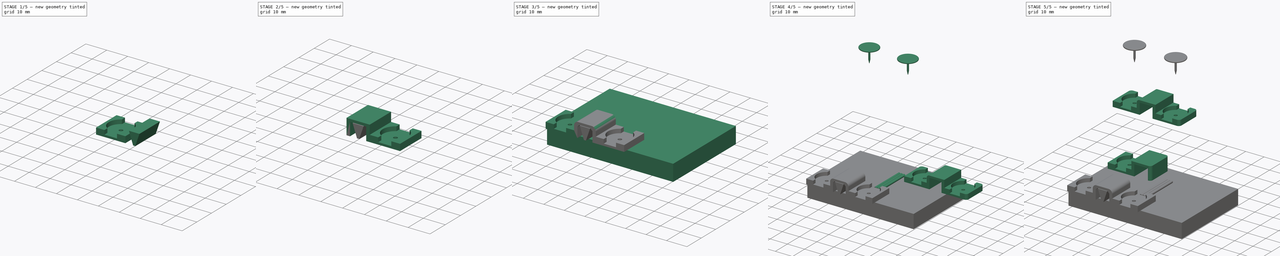
[diagram: build sequence overview — one tinted view per stage of 5, left to right]
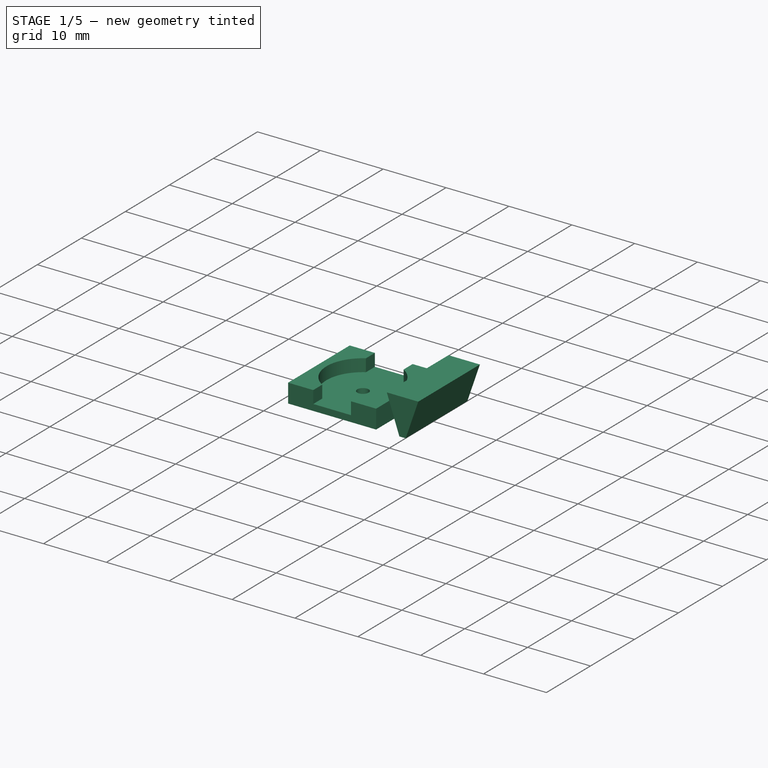
[diagram: stage 1 of 5 — iso view after this stage's code; geometry added in this stage tinted green]
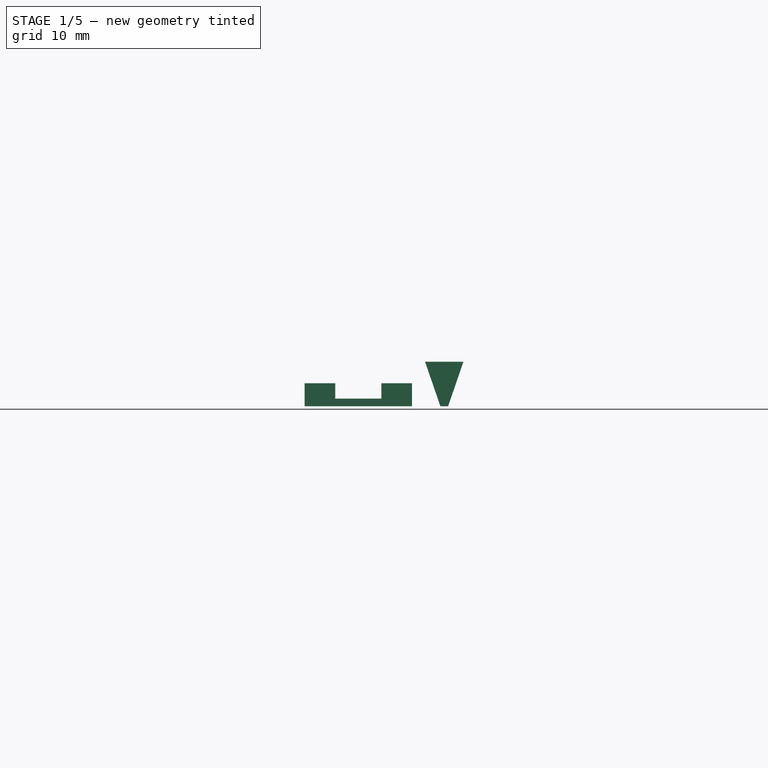
[diagram: stage 1 of 5 — front view after this stage's code; geometry added in this stage tinted green]
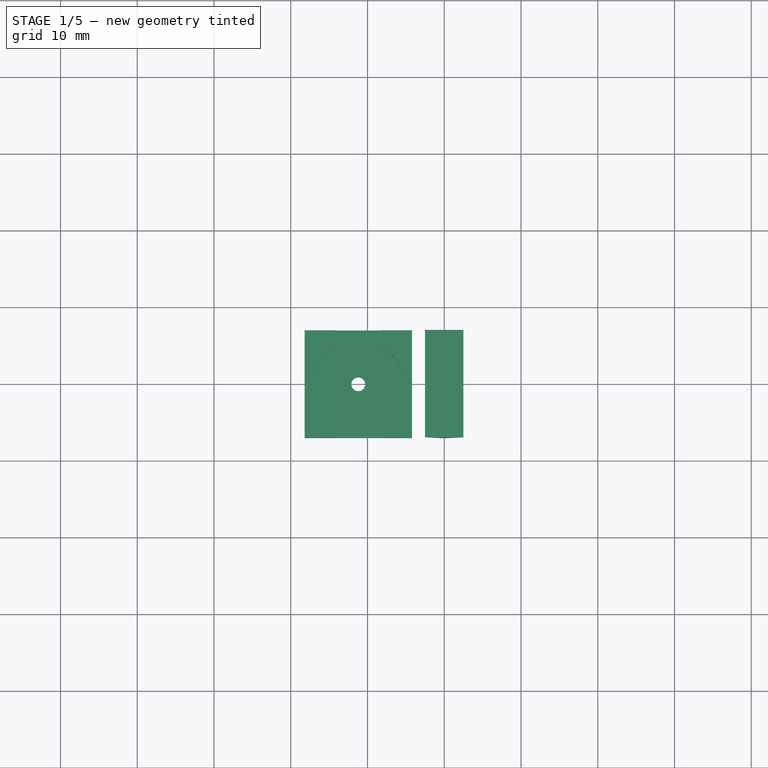
[diagram: stage 1 of 5 — top view after this stage's code; geometry added in this stage tinted green]
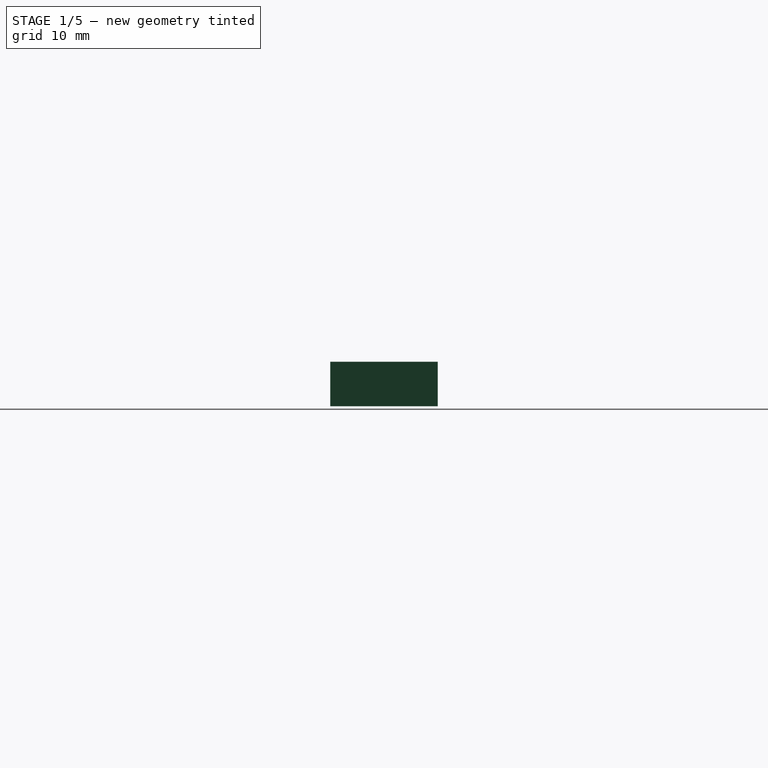
[diagram: stage 1 of 5 — right view after this stage's code; geometry added in this stage tinted green]
FCSTD DOCUMENT  (FreeCAD 0.16R6712 (Git))
Label: wire-holder-luis
License: All rights reserved
LicenseURL: http://en.wikipedia.org/wiki/All_rights_reserved
objects: Part::Part2DObjectPython×14, Part::FeaturePython×13, App::DocumentObjectGroup×9, Part::Feature×8, Sketcher::SketchObject×5, App::Annotation×4, PartDesign::Pad×3, PartDesign::Pocket×2, Part::MultiFuse×2, Part::Fillet×2, Part::Compound×1, Part::Chamfer×1, Part::Wedge×1
note: 57 computed .brp shape members not serialized (recipe doc carries the construction recipe); baked Part::Feature solids carry a one-line shape summary decoded from their .brp

FEATURE [Sketcher::SketchObject] Sketch006  label="pp-unit-body-sketch"
  sketch-geometry (4):
    g0: LineSegment StartX=-7 StartY=7 StartZ=0 EndX=7 EndY=7 EndZ=0
    g1: LineSegment StartX=7 StartY=7 StartZ=0 EndX=7 EndY=-7 EndZ=0
    g2: LineSegment StartX=7 StartY=-7 StartZ=0 EndX=-7 EndY=-7 EndZ=0
    g3: LineSegment StartX=-7 StartY=-7 StartZ=0 EndX=-7 EndY=7 EndZ=0
  constraints (11):
    c: Coincident(g0,g1)
    c: Coincident(g1,g2)
    c: Coincident(g2,g3)
    c: Coincident(g3,g0)
    c: Horizontal(g0)
    c: Horizontal(g2)
    c: Vertical(g1)
    c: Vertical(g3)
    c: Symmetric(g0,g1,g-1)
    c: Equal(g3,g0)
    c: DistanceX(g0,g0) = 14
FEATURE [PartDesign::Pad] Pad002  label="push-pin-unit-body"
  Length = 3
  Length2 = 100
  Sketch = -> Sketch006
  Type = 0
FEATURE [Sketcher::SketchObject] Sketch007  label="pushpin-top-cutout-sketch"
  ExternalGeometry = -> [Pad002]
  Placement = pos=(0,0,3) rot=(0,0,1;0rad)
  Support = -> Pad002 [Face6]
  sketch-geometry (8):
    g0: LineSegment StartX=-3 StartY=7 StartZ=0 EndX=-3 EndY=4.96387 EndZ=0
    g1: ArcOfCircle CenterX=0 CenterY=0 CenterZ=0 NormalX=0 NormalY=0 NormalZ=1 Radius=5.8 StartAngle=2.11442 EndAngle=4.16876
    g2: LineSegment StartX=-3 StartY=-7 StartZ=0 EndX=-3 EndY=-4.96387 EndZ=0
    g3: LineSegment StartX=-3 StartY=7 StartZ=0 EndX=3 EndY=7 EndZ=0
    g4: LineSegment StartX=3 StartY=7 StartZ=0 EndX=3 EndY=4.96387 EndZ=0
    g5: ArcOfCircle CenterX=0 CenterY=0 CenterZ=0 NormalX=0 NormalY=0 NormalZ=1 Radius=5.8 StartAngle=5.25601 EndAngle=7.31036
    g6: LineSegment StartX=3 StartY=-4.96387 StartZ=0 EndX=3 EndY=-7 EndZ=0
    g7: LineSegment StartX=3 StartY=-7 StartZ=0 EndX=-3 EndY=-7 EndZ=0
  constraints (23):
    c: Radius(g1) = 5.8
    c: Coincident(g1,g0)
    c: Coincident(g1,g-1)
    c: PointOnObject(g1,g0)
    c: Vertical(g2)
    c: Coincident(g2,g1)
    c: Coincident(g0,g3)
    c: Horizontal(g3)
    c: Coincident(g3,g4)
    c: Vertical(g4)
    c: PointOnObject(g0,g-3)
    c: DistanceX(g0,g3) = 6
    c: Symmetric(g2,g0,g-1)
    c: Symmetric(g0,g3,g-2)
    c: Coincident(g5,g-1)
    c: Coincident(g4,g5)
    c: Symmetric(g0,g4,g-2)
    c: Vertical(g6)
    c: Coincident(g6,g7)
    c: Horizontal(g7)
    c: Coincident(g7,g2)
    c: Coincident(g6,g5)
    c: Symmetric(g6,g2,g-2)
FEATURE [PartDesign::Pocket] Pocket004  label="pushpin-top-cutout"
  Length = 2
  Sketch = -> Sketch007
  Type = 0
FEATURE [Sketcher::SketchObject] Sketch008  label="pushpin-hole-sketch"
  Placement = pos=(0,0,1) rot=(0,0,1;0rad)
  Support = -> Pocket004 [Face6]
  sketch-geometry (1):
    g0: Circle CenterX=0 CenterY=0 CenterZ=0 NormalX=0 NormalY=0 NormalZ=1 Radius=0.9
  constraints (2):
    c: Coincident(g0,g-1)
    c: Radius(g0) = 0.9
FEATURE [PartDesign::Pocket] Pocket005  label="pushpin-hole"
  Length = 5
  Sketch = -> Sketch008
  Type = 1
FEATURE [Part::Feature] Compound002002004  label="pushpin-2"
  Placement = pos=(-11.2,0,1) rot=(0,0,1;0rad)
  shape: bbox 9.1 x 9.1 x 22.45 mm, 12 faces, 2 solids (baked)
FEATURE [Part::Feature] Compound002002002  label="Pushpin-1"
  Placement = pos=(-11.2,30,1.3) rot=(0,0,1;0rad)
  shape: bbox 11.26 x 11.26 x 8.7 mm, 14 faces, 2 solids (baked)
FEATURE [Part::FeaturePython] Clone  label="pushpin-unit1"  # Draft clone (typed FeaturePython)
  Objects = -> [Pocket005]
  Placement = pos=(-11.2,0,0) rot=(0,0,1;0rad)
  Scale = (1,1,1)
FEATURE [Part::Wedge] Wedge  label="Soporte"
  Placement = pos=(0.5,1,0) rot=(-1,0,0;1.5708rad)
  X2max = 0
  X2min = -1
  Xmax = 2
  Xmin = -3
  Ymax = 0
  Ymin = -5.8
  Z2max = 6
  Z2min = -8
  Zmax = 6
  Zmin = -8
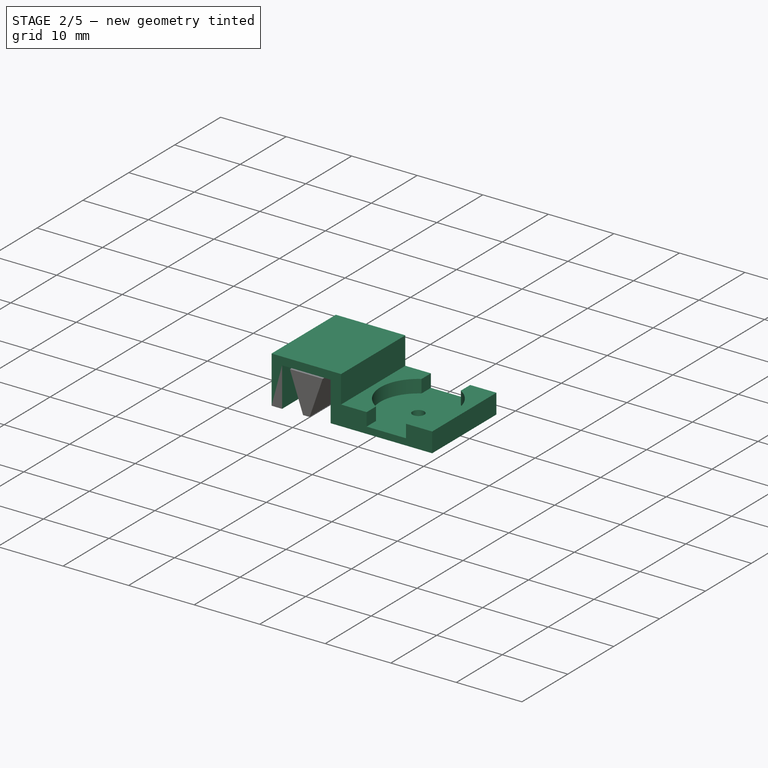
[diagram: stage 2 of 5 — iso view after this stage's code; geometry added in this stage tinted green]
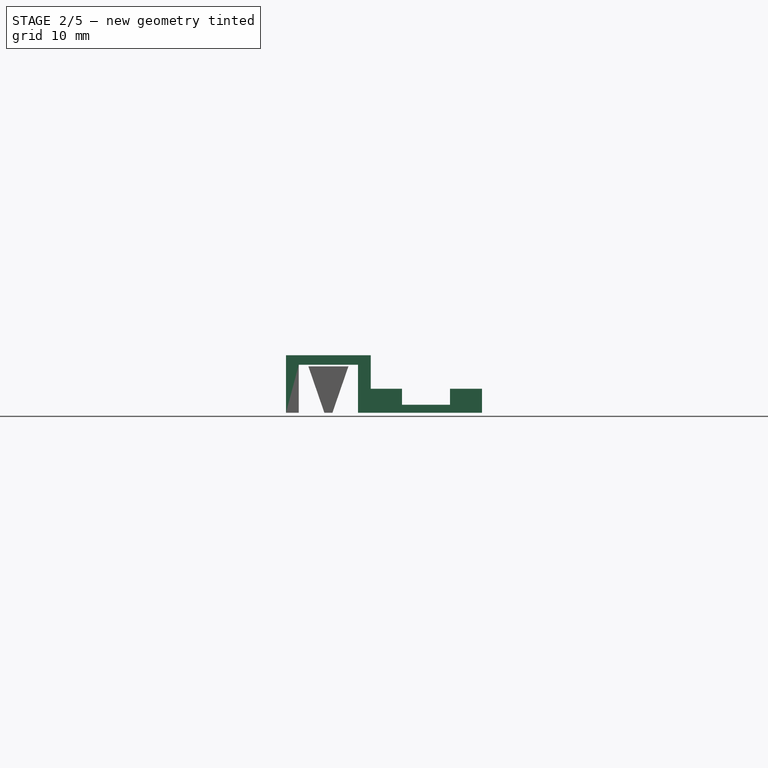
[diagram: stage 2 of 5 — front view after this stage's code; geometry added in this stage tinted green]
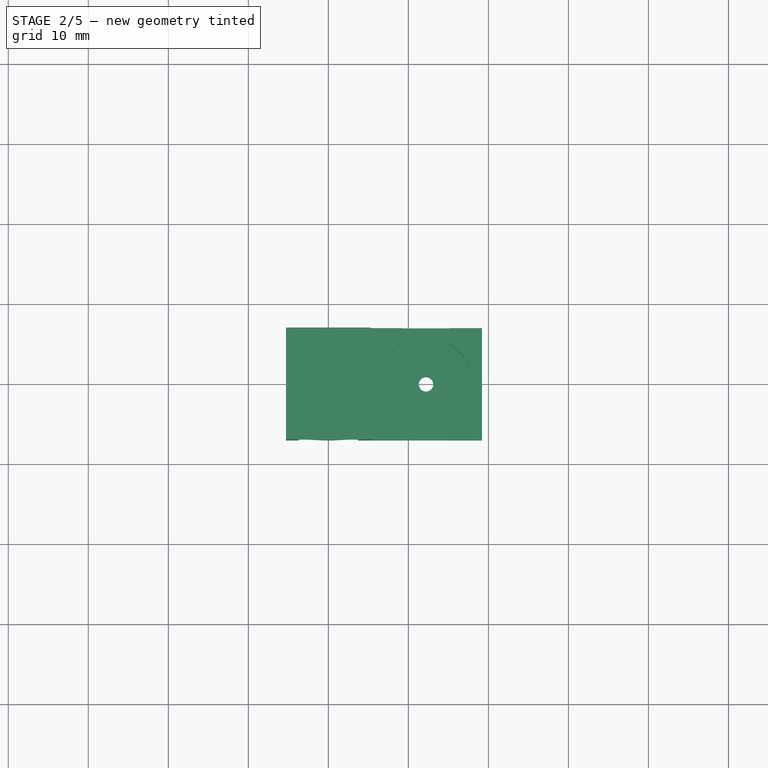
[diagram: stage 2 of 5 — top view after this stage's code; geometry added in this stage tinted green]
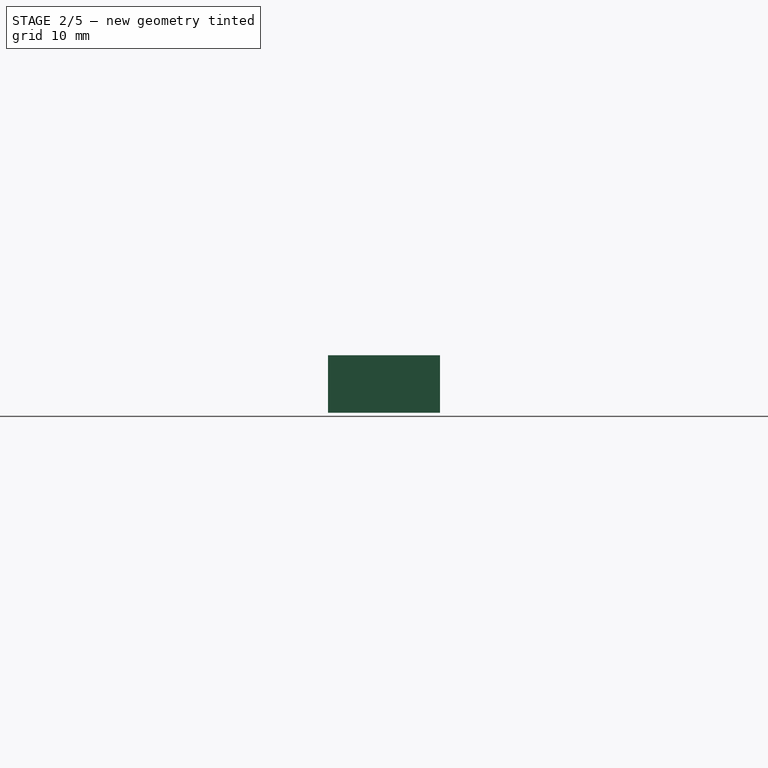
[diagram: stage 2 of 5 — right view after this stage's code; geometry added in this stage tinted green]
FEATURE [App::DocumentObjectGroup] Grupo003  label="src-pushpin-units"
  Group = -> [Pad002,Pocket004,Pocket005]
FEATURE [Sketcher::SketchObject] Sketch  label="clamp-sketch"
  Placement = pos=(0,0,0) rot=(1,0,0;1.5708rad)
  sketch-geometry (10):
    g0: LineSegment StartX=-3.7 StartY=7.2 StartZ=0 EndX=5.3 EndY=7.2 EndZ=0
    g1: LineSegment StartX=5.3 StartY=7.2 StartZ=0 EndX=5.3 EndY=0 EndZ=0
    g2: LineSegment StartX=5.3 StartY=0 StartZ=0 EndX=3.7 EndY=0 EndZ=0
    g3: LineSegment StartX=3.7 StartY=0 StartZ=0 EndX=3.7 EndY=6 EndZ=0
    g4: LineSegment StartX=3.7 StartY=6 StartZ=0 EndX=-3.7 EndY=6 EndZ=0
    g5: LineSegment StartX=-3.7 StartY=7.2 StartZ=0 EndX=-5.3 EndY=7.2 EndZ=0
    g6: LineSegment [constr] StartX=-3.7 StartY=7.2 StartZ=0 EndX=-3.7 EndY=6 EndZ=0
    g7: LineSegment StartX=-5.3 StartY=7.2 StartZ=0 EndX=-5.3 EndY=0 EndZ=0
    g8: LineSegment StartX=-5.3 StartY=0 StartZ=0 EndX=-3.7 EndY=0 EndZ=0
    g9: LineSegment StartX=-3.7 StartY=0 StartZ=0 EndX=-3.7 EndY=6 EndZ=0
  constraints (29):
    c: Horizontal(g0)
    c: Coincident(g0,g1)
    c: Vertical(g1)
    c: Coincident(g1,g2)
    c: Horizontal(g2)
    c: Coincident(g2,g3)
    c: Vertical(g3)
    c: Coincident(g3,g4)
    c: Horizontal(g4)
    c: PointOnObject(g2,g-1)
    c: DistanceY(g3,g3) = 6
    c: DistanceY(g4,g0) = 1.2
    c: DistanceX(g4,g2) = 7.4
    c: DistanceX(g2,g2) = 1.6
    c: Horizontal(g5)
    c: Coincident(g5,g0)
    c: Coincident(g6,g0)
    c: Coincident(g6,g4)
    c: Vertical(g6)
    c: Vertical(g7)
    c: Coincident(g7,g8)
    c: Horizontal(g8)
    c: Coincident(g8,g9)
    c: Vertical(g9)
    c: Coincident(g9,g4)
    c: PointOnObject(g8,g2)
    c: Coincident(g7,g5)
    c: Symmetric(g5,g0,g-2)
    c: Equal(g8,g2)
FEATURE [PartDesign::Pad] Pad  label="clamp"
  Length = 14
  Length2 = 100
  Midplane = true
  Placement = pos=(0,0,0) rot=(1,0,0;1.5708rad)
  Sketch = -> Sketch
  Type = 0
FEATURE [App::DocumentObjectGroup] Grupo004  label="src-Clamp-unit"
  Group = -> [Pad]
FEATURE [Part::FeaturePython] Clone001  label="clamp-unit"  # Draft clone (typed FeaturePython)
  Objects = -> [Pad]
  Placement = pos=(0,0,0) rot=(1,0,0;1.5708rad)
  Scale = (1,1,1)
FEATURE [Part::FeaturePython] Clone002  label="pushpin-unit002"  # Draft clone (typed FeaturePython)
  Objects = -> [Clone]
  Placement = pos=(-12.2,0,0) rot=(0,0,1;0rad)
  Scale = (1,1,1)
FEATURE [Part::FeaturePython] Clone003  label="clamp-unit001"  # Draft clone (typed FeaturePython)
  Objects = -> [Clone001]
  Placement = pos=(0,0,0) rot=(1,0,0;1.5708rad)
  Scale = (1,1,1)
FEATURE [Part::FeaturePython] Clone004  label="pushpin-unit003"  # Draft clone (typed FeaturePython)
  Objects = -> [Clone002]
  Placement = pos=(12.2,0,0) rot=(0,0,1;0rad)
  Scale = (1,1,1)
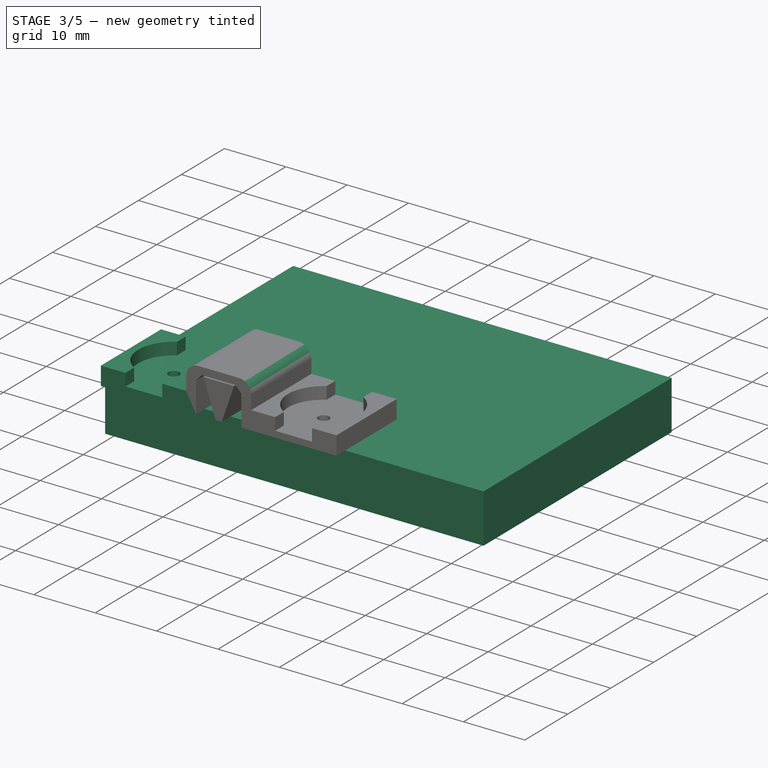
[diagram: stage 3 of 5 — iso view after this stage's code; geometry added in this stage tinted green]
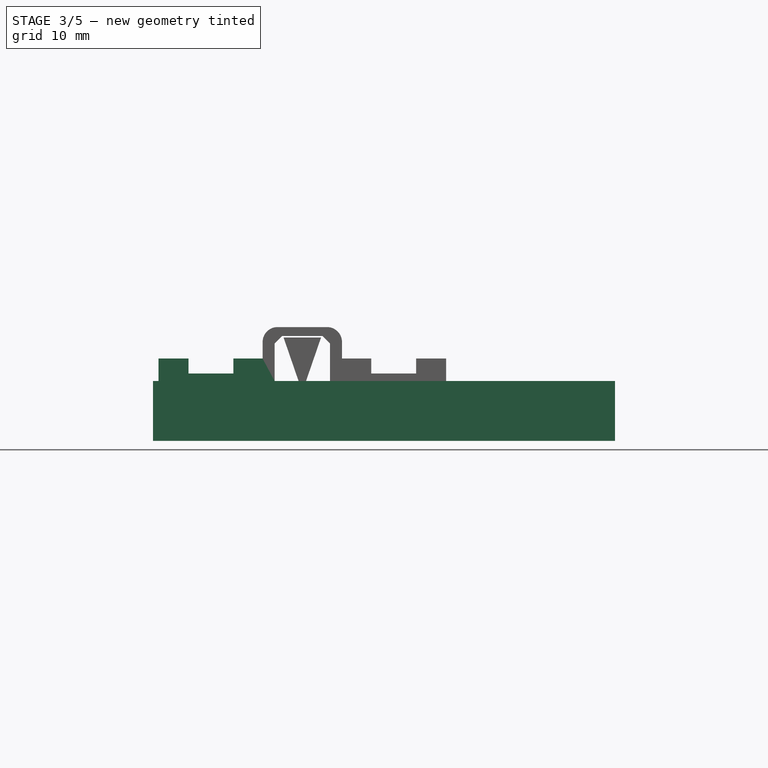
[diagram: stage 3 of 5 — front view after this stage's code; geometry added in this stage tinted green]
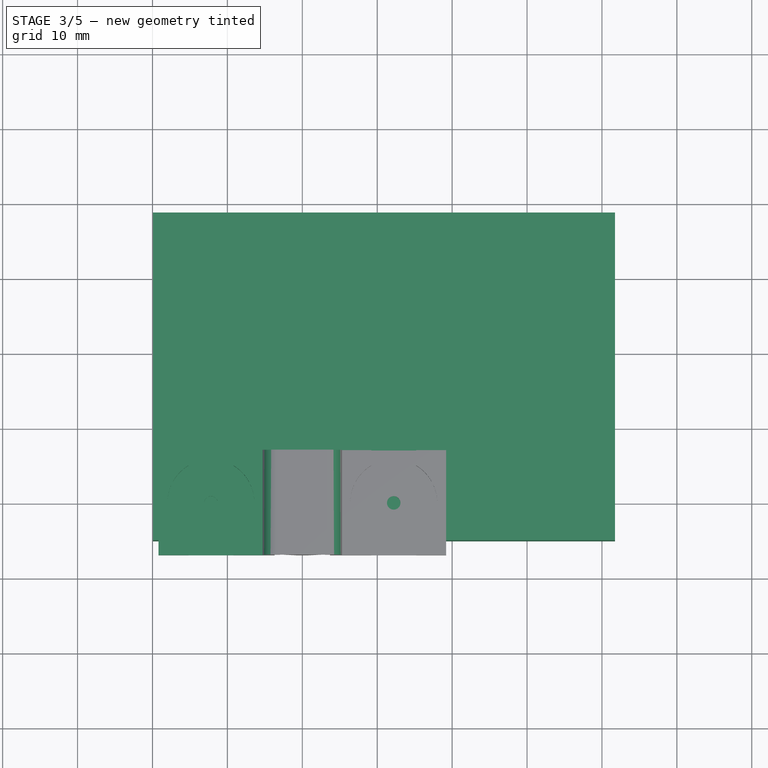
[diagram: stage 3 of 5 — top view after this stage's code; geometry added in this stage tinted green]
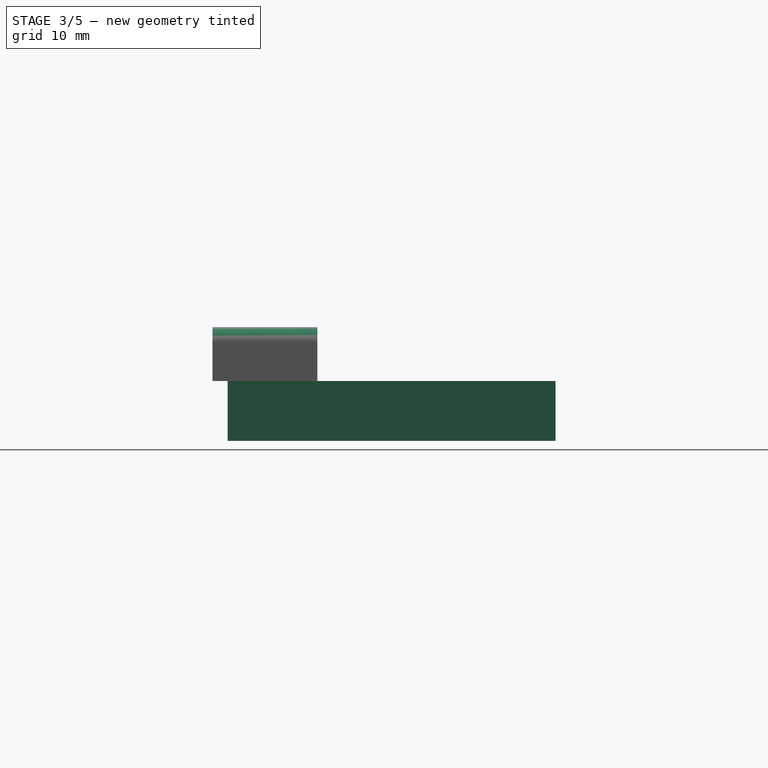
[diagram: stage 3 of 5 — right view after this stage's code; geometry added in this stage tinted green]
FEATURE [Part::MultiFuse] Fusion001  label="wire-holder-double-fusion"
  Shapes = -> [Clone002,Clone003,Clone004]
FEATURE [Part::Feature] Compound002002009  label="white-Pushpin001"
  Placement = pos=(46.6721,29.0309,1.3) rot=(0,0,1;0rad)
  shape: bbox 11.26 x 11.26 x 8.7 mm, 14 faces, 2 solids (baked)
FEATURE [App::DocumentObjectGroup] Grupo010  label="double"
  Group = -> [Clone007,Compound002002008,Compound,Compound002002009]
FEATURE [Sketcher::SketchObject] Sketch009
  Placement = pos=(0,0,-8) rot=(0,0,1;0rad)
  sketch-geometry (4):
    g0: LineSegment StartX=-62.3239 StartY=69.4771 StartZ=0 EndX=91.8498 EndY=69.4771 EndZ=0
    g1: LineSegment StartX=91.8498 StartY=69.4771 StartZ=0 EndX=91.8498 EndY=-39.9512 EndZ=0
    g2: LineSegment StartX=91.8498 StartY=-39.9512 StartZ=0 EndX=-62.3239 EndY=-39.9512 EndZ=0
    g3: LineSegment StartX=-62.3239 StartY=-39.9512 StartZ=0 EndX=-62.3239 EndY=69.4771 EndZ=0
  constraints (8):
    c: Coincident(g0,g1)
    c: Coincident(g1,g2)
    c: Coincident(g2,g3)
    c: Coincident(g3,g0)
    c: Horizontal(g0)
    c: Horizontal(g2)
    c: Vertical(g1)
    c: Vertical(g3)
FEATURE [PartDesign::Pad] Pad003  label="board"
  Length = 8
  Length2 = 100
  Placement = pos=(0,0,-8) rot=(0,0,1;0rad)
  Sketch = -> Sketch009
  Type = 0
FEATURE [App::DocumentObjectGroup] Grupo  label="Assembly"
  Group = -> [Grupo008,Grupo009,Grupo010,Pad003]
FEATURE [Part::FeaturePython] Clone001003  label="Clone of board"  # Draft clone (typed FeaturePython)
  Objects = -> [Pad003]
  Placement = pos=(5,11,-8) rot=(0,0,1;0rad)
  Scale = (0.4,0.4,1)
FEATURE [Part::Part2DObjectPython] Line  # Draft 2D object (typed FeaturePython)
  ChamferSize = 0
  Closed = false
  End = (1.25027,16.1026,0)
  FilletRadius = 0
  Length = 60.2
  MakeFace = true
  Points = (2) [(1.25027,16.1026,60.2),(1.25027,16.1026,0)]
  Start = (1.25027,16.1026,60.2)
  Subdivisions = 0
  Support = -> Clone001003
FEATURE [Part::Part2DObjectPython] Line001  # Draft 2D object (typed FeaturePython)
  ChamferSize = 0
  Closed = false
  End = (23.7503,16.1026,60.2)
  FilletRadius = 0
  Length = 60.2001
  MakeFace = true
  Points = (2) [(23.6503,16.1026,0),(23.7503,16.1026,60.2)]
  Start = (23.6503,16.1026,0)
  Subdivisions = 0
FEATURE [App::Annotation] Text
  LabelText = 1
  Position = (59,0,90)
FEATURE [Part::Part2DObjectPython] Circle  # Draft 2D object (typed FeaturePython)
  FirstAngle = 0
  LastAngle = 0
  MakeFace = false
  Placement = pos=(59.8314,0,91.8574) rot=(1,0,0;1.5708rad)
  Radius = 4.42517
FEATURE [Part::Part2DObjectPython] DWire  # Draft 2D object (typed FeaturePython)
  ChamferSize = 0
  Closed = false
  End = (57.7475,0,87.4547)
  FilletRadius = 0
  Length = 18.4131
  MakeFace = true
  Points = (3) [(43,0,80),(52,0,80),(57.7475,0,87.4547)]
  Start = (43,0,80)
  Subdivisions = 0
FEATURE [Part::Part2DObjectPython] Circle001  # Draft 2D object (typed FeaturePython)
  FirstAngle = 0
  LastAngle = 0
  MakeFace = false
  Placement = pos=(70.0841,0,70.8017) rot=(1,0,0;1.5708rad)
  Radius = 4.42517
FEATURE [App::Annotation] Text001
  LabelText = 2
  Position = (69.2527,0,68.9443)
FEATURE [Part::Part2DObjectPython] DWire001  # Draft 2D object (typed FeaturePython)
  Placement = pos=(10.2527,0,-21.0557) rot=(0,0,1;0rad)
FEATURE [Part::Part2DObjectPython] DWire002  # Draft 2D object (typed FeaturePython)
  ChamferSize = 0
  Closed = false
  End = (68.0002,0,66.399)
  FilletRadius = 0
  Length = 18.4131
  MakeFace = true
  Placement = pos=(10.2527,0,-21.0557) rot=(0,0,1;0rad)
  Points = (3) [(43,0,80),(52,0,80),(57.7475,0,87.4547)]
  Start = (53.2527,0,58.9443)
  Subdivisions = 0
FEATURE [Part::Part2DObjectPython] Circle002  # Draft 2D object (typed FeaturePython)
  FirstAngle = 0
  LastAngle = 0
  MakeFace = false
  Placement = pos=(48.4425,0,24.6206) rot=(1,0,0;1.5708rad)
  Radius = 4.42517
FEATURE [App::Annotation] Text002
  LabelText = 3
  Position = (47.6111,0,22.7633)
FEATURE [Part::Part2DObjectPython] DWire003  # Draft 2D object (typed FeaturePython)
  Placement = pos=(-11.3889,0,-67.2367) rot=(0,0,1;0rad)
FEATURE [Part::Part2DObjectPython] Line002  # Draft 2D object (typed FeaturePython)
  ChamferSize = 0
  Closed = false
  End = (27.043,0,12.761)
  FilletRadius = 0
  Length = 13.5681
  MakeFace = true
  Points = (2) [(40.6111,0,12.7633),(27.043,0,12.761)]
  Start = (40.6111,0,12.7633)
  Subdivisions = 0
FEATURE [Part::Part2DObjectPython] Line003  # Draft 2D object (typed FeaturePython)
  ChamferSize = 0
  Closed = false
  End = (46.2973,0,19.8307)
  FilletRadius = 0
  Length = 9.07089
  MakeFace = true
  Points = (2) [(40.6111,0,12.7633),(46.2973,0,19.8307)]
  Start = (40.6111,0,12.7633)
  Subdivisions = 0
FEATURE [Part::Part2DObjectPython] DWire004  # Draft 2D object (typed FeaturePython)
FEATURE [Part::Part2DObjectPython] DWire005  # Draft 2D object (typed FeaturePython)
  ChamferSize = 0
  Closed = false
  End = (88.2656,0,35.0213)
  FilletRadius = 0
  Length = 18.4131
  MakeFace = true
  Placement = pos=(30.5181,0,-52.4334) rot=(0,0,1;0rad)
  Points = (3) [(43,0,80),(52,0,80),(57.7475,0,87.4547)]
  Start = (73.5181,0,27.5666)
  Subdivisions = 0
FEATURE [App::Annotation] Text003
  LabelText = 4
  Position = (89.5181,0,37.5666)
FEATURE [Part::Part2DObjectPython] Circle003  # Draft 2D object (typed FeaturePython)
  FirstAngle = 0
  LastAngle = 0
  MakeFace = false
  Placement = pos=(90.3495,0,39.424) rot=(1,0,0;1.5708rad)
  Radius = 4.42517
FEATURE [App::DocumentObjectGroup] Grupo011  label="Exploded-view"
  Group = -> [Clone001003,Clone001004,Clone001005,Clone001006,Clone001007,Line,Line001,Text,Circle,DWire,Circle001,Text001,DWire001,DWire002,Circle002,Text002,DWire003,Line002,Line003,DWire004,DWire005,Text003,Circle003]
FEATURE [Part::Fillet] Fillet001
  Base = -> Fusion001
  Edges = 2 edges r=2: [Edge57,Edge58]
FEATURE [Part::Chamfer] Chamfer  label="Sujeta-cables-grande"
  Base = -> Fillet001
  Edges = 2 edges r=1: [Edge73,Edge79]
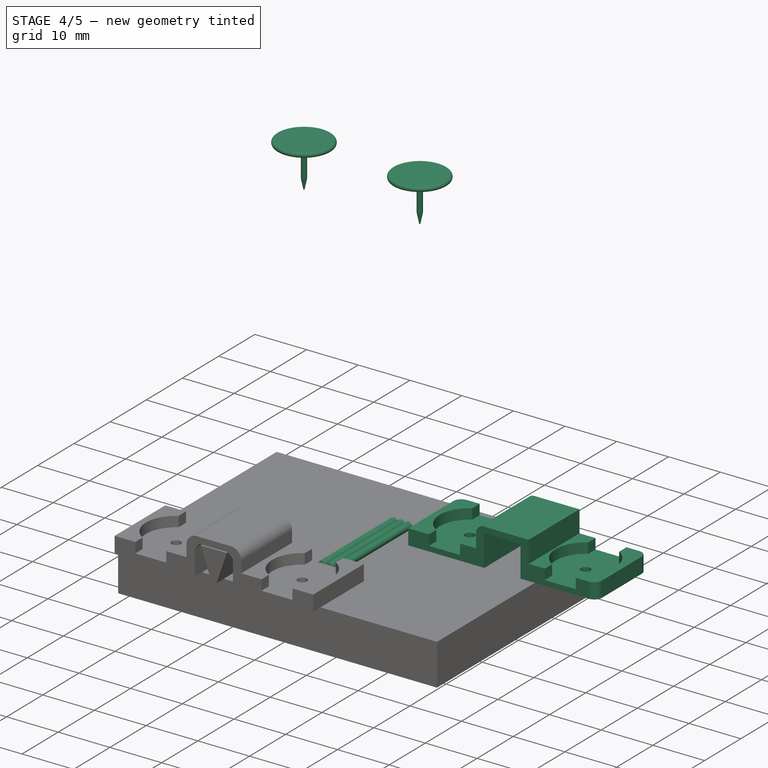
[diagram: stage 4 of 5 — iso view after this stage's code; geometry added in this stage tinted green]
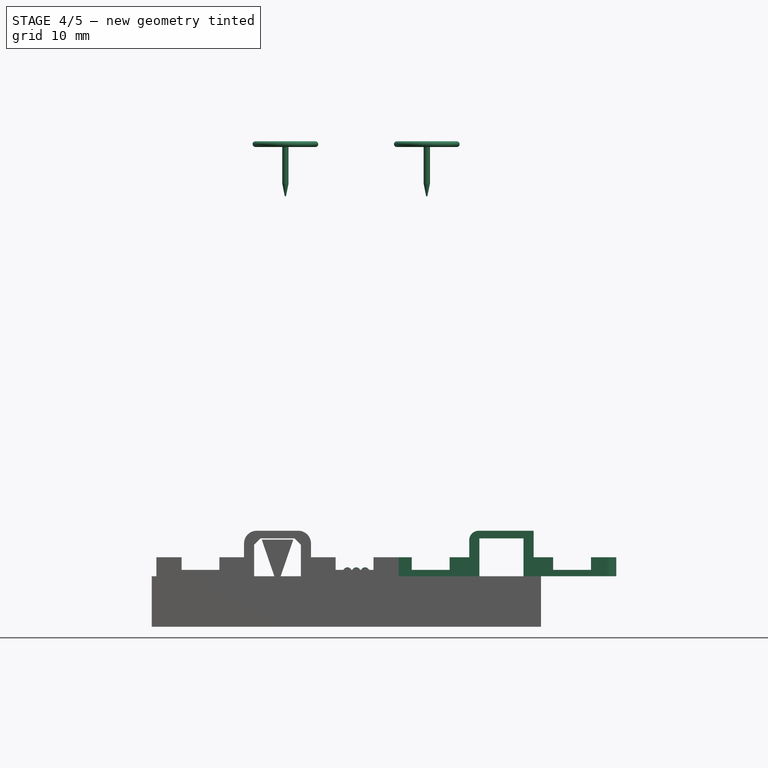
[diagram: stage 4 of 5 — front view after this stage's code; geometry added in this stage tinted green]
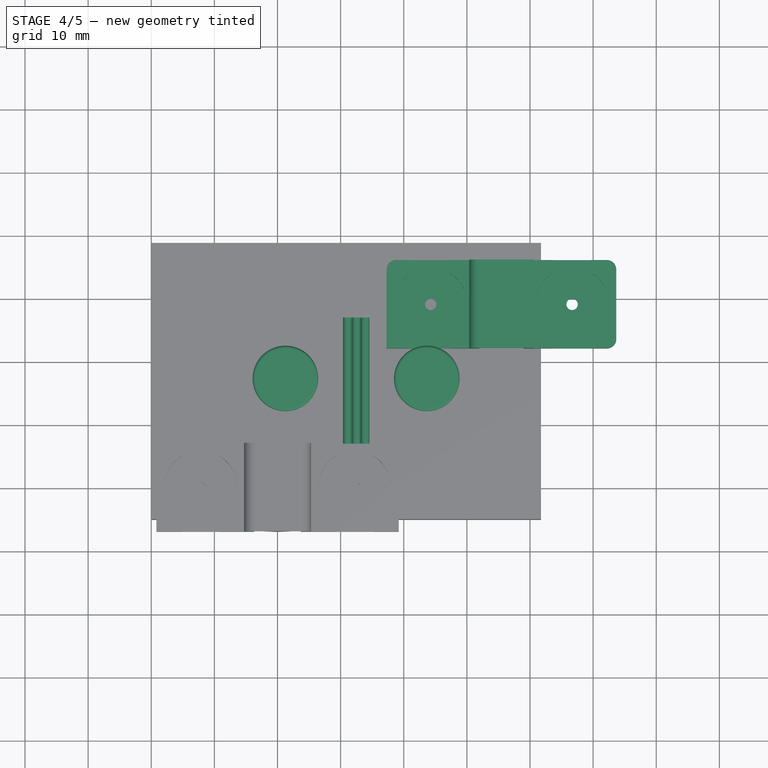
[diagram: stage 4 of 5 — top view after this stage's code; geometry added in this stage tinted green]
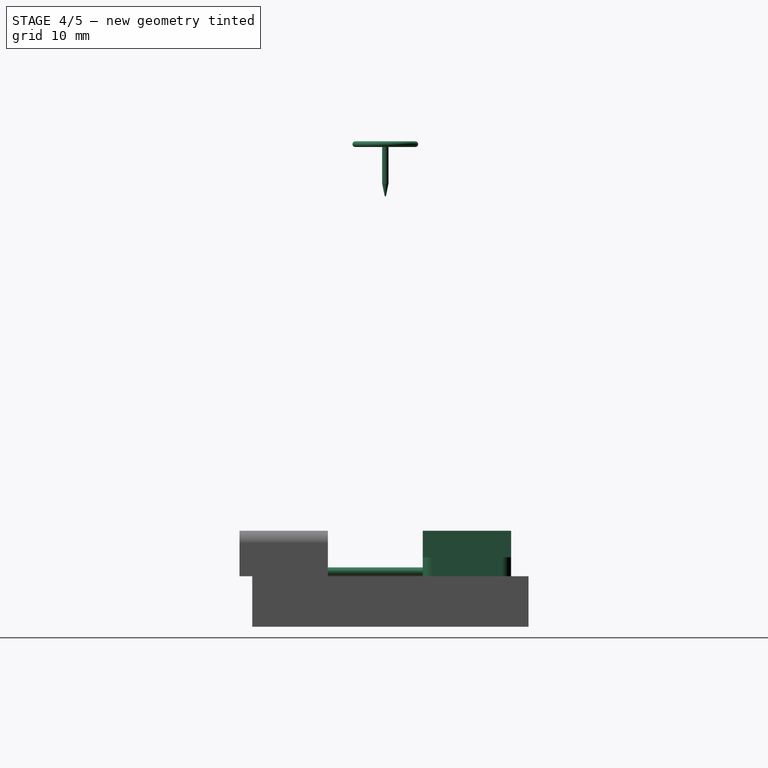
[diagram: stage 4 of 5 — right view after this stage's code; geometry added in this stage tinted green]
FEATURE [Part::Feature] Compound002002007  label="wires002"
  Placement = pos=(-9.4,30,0) rot=(0,0,1;0rad)
  shape: bbox 4.2 x 20 x 1.4 mm, 9 faces, 3 solids (baked)
FEATURE [App::DocumentObjectGroup] Grupo009  label="Single2"
  Group = -> [Clone006,Compound002002007,Compound002002002]
FEATURE [Part::FeaturePython] Clone007  label="wire-holder-double"  # WARN: FeaturePython — macro-defined, semantics opaque (R4)
  Placement = pos=(35.4721,29.0309,0) rot=(0,0,1;0rad)
  Scale = (1,1,1)
FEATURE [Part::Feature] Compound002002008  label="wires003"
  Placement = pos=(26.0989,29.8633,0) rot=(0,0,1;0rad)
  shape: bbox 4.2 x 20 x 1.4 mm, 9 faces, 3 solids (baked)
FEATURE [Part::Feature] Clone001001  label="cover001"
  Placement = pos=(0,0,0) rot=(1,0,0;1.5708rad)
  shape: bbox 11.26 x 11.26 x 0.9 mm, 7 faces (baked)
FEATURE [Part::Feature] Clone001002  label="Pushpin-body001"
  shape: bbox 9.55 x 9.55 x 8.4 mm, 7 faces (baked)
FEATURE [Part::Compound] Compound  label="white-Pushpin"
  Links = -> [Clone001001,Clone001002]
  Placement = pos=(24.2721,29.0309,1.3) rot=(0,0,1;0rad)
FEATURE [Part::FeaturePython] Clone001005  label="Clone of wires003"  # Draft clone (typed FeaturePython)
  Objects = -> [Compound002002008]
  Placement = pos=(3.07707,16.935,0) rot=(0,0,1;0rad)
  Scale = (1,1,1)
FEATURE [Part::FeaturePython] Clone001006  label="Clone of white-Pushpin"  # Draft clone (typed FeaturePython)
  Objects = -> [Compound]
  Placement = pos=(1.25027,16.1026,68.3) rot=(0,0,1;0rad)
  Scale = (1,1,1)
FEATURE [Part::FeaturePython] Clone001007  label="Clone of white-Pushpin001"  # Draft clone (typed FeaturePython)
  Objects = -> [Compound002002009]
  Placement = pos=(23.6503,16.1026,68.3) rot=(0,0,1;0rad)
  Scale = (1,1,1)
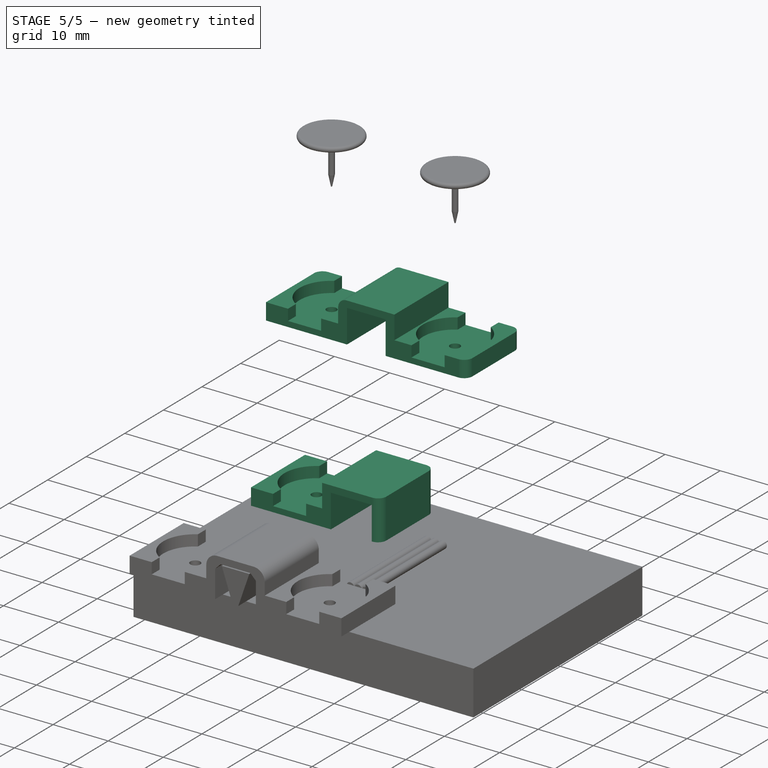
[diagram: stage 5 of 5 — iso view after this stage's code; geometry added in this stage tinted green]
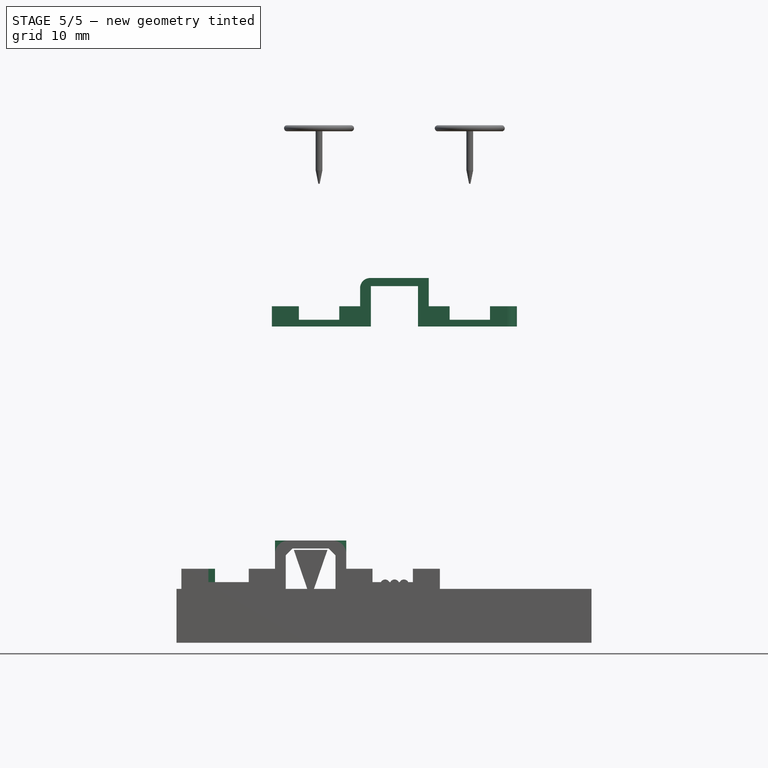
[diagram: stage 5 of 5 — front view after this stage's code; geometry added in this stage tinted green]
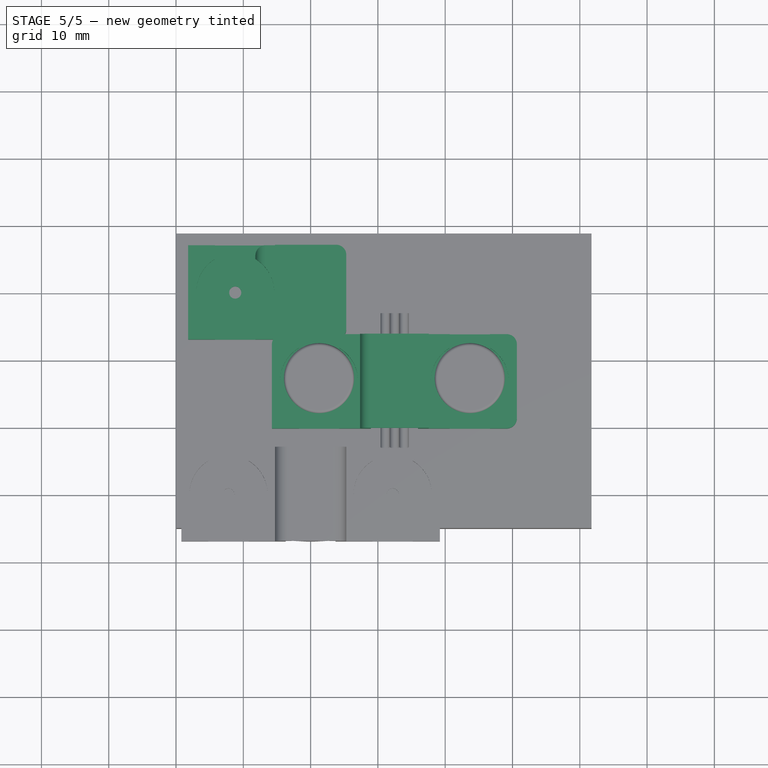
[diagram: stage 5 of 5 — top view after this stage's code; geometry added in this stage tinted green]
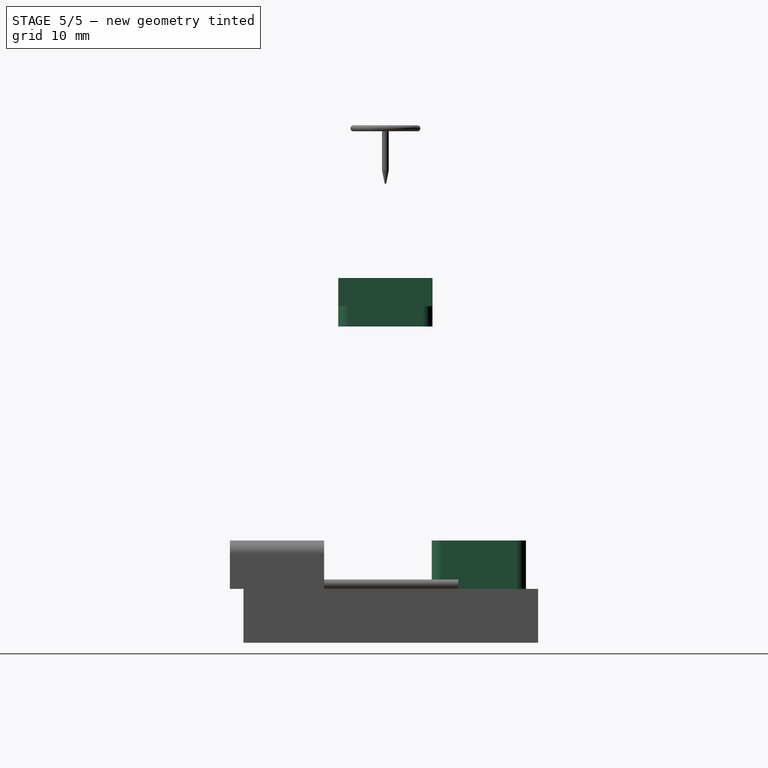
[diagram: stage 5 of 5 — right view after this stage's code; geometry added in this stage tinted green]
FEATURE [Part::MultiFuse] Fusion  label="wire-holder-single-fusion"
  Shapes = -> [Clone,Clone001]
FEATURE [App::DocumentObjectGroup] Grupo007  label="src-wire-holder-double"
  Group = -> [Fusion001]
FEATURE [Part::Fillet] Fillet  label="wire-holder-single-rounded"
  Base = -> Fusion
  Edges = 4 edges r=1.5: [Edge1,Edge2,Edge42,Edge43]
FEATURE [App::DocumentObjectGroup] Grupo005  label="src-wire-holder-single"
  Group = -> [Fusion,Fillet]
FEATURE [Part::FeaturePython] Clone005  label="wire-holder-single"  # Draft clone (typed FeaturePython)
  Objects = -> [Fillet]
  Scale = (1,1,1)
FEATURE [Part::Feature] Compound002002005  label="wires001"
  Placement = pos=(-9.4,0,0) rot=(0,0,1;0rad)
  shape: bbox 4.2 x 20 x 1.4 mm, 9 faces, 3 solids (baked)
FEATURE [App::DocumentObjectGroup] Grupo008  label="Single1"
  Group = -> [Clone005,Compound002002005,Compound002002004]
FEATURE [Part::FeaturePython] Clone006  label="wire-holder-single-2"  # Draft clone (typed FeaturePython)
  Objects = -> [Clone005]
  Placement = pos=(0,30,0) rot=(0,0,1;0rad)
  Scale = (1,1,1)
FEATURE [Part::FeaturePython] Clone001004  label="Clone of wire-holder-double"  # Draft clone (typed FeaturePython)
  Objects = -> [Clone007]
  Placement = pos=(12.4503,16.1026,39) rot=(0,0,1;0rad)
  Scale = (1,1,1)
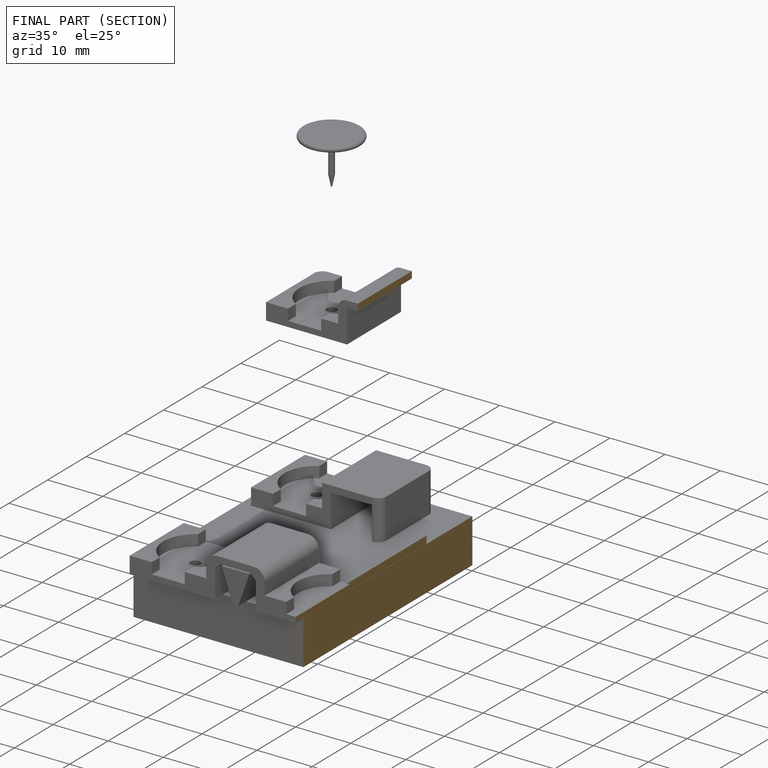
[diagram: finished part — half-section view (interior)]
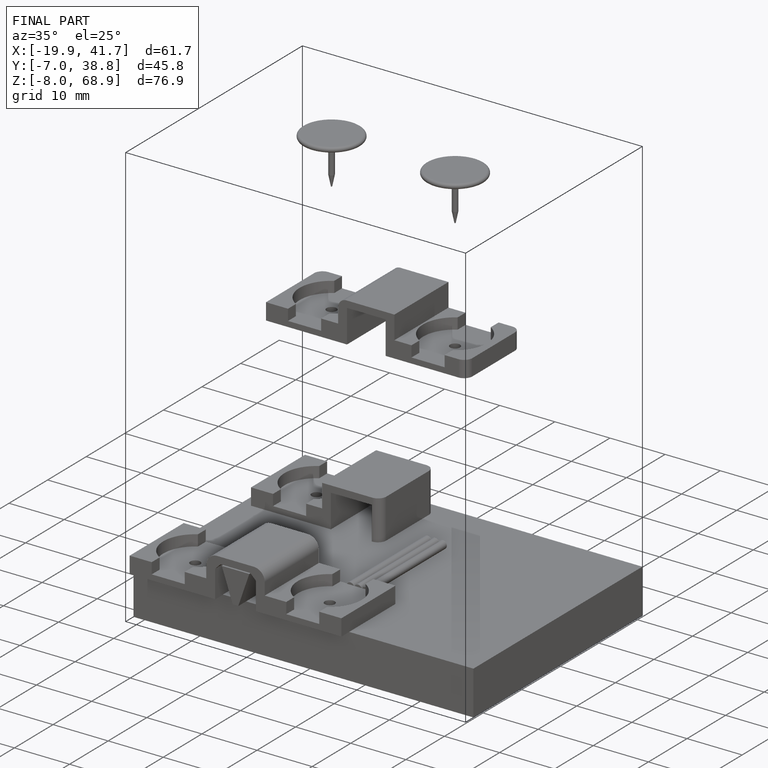
[diagram: finished part — iso view with bounding-box wireframe]
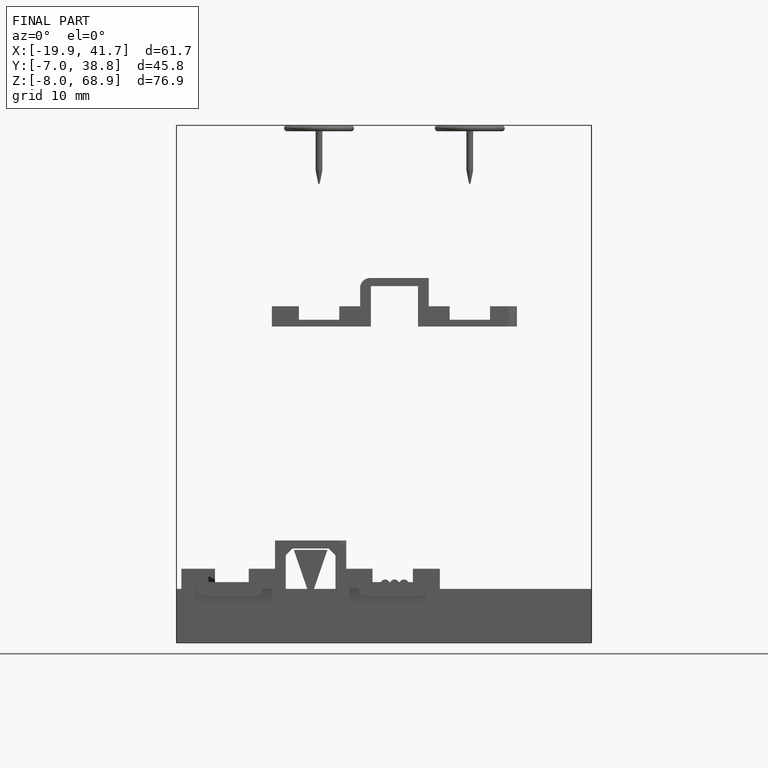
[diagram: finished part — front view with bounding-box wireframe]
